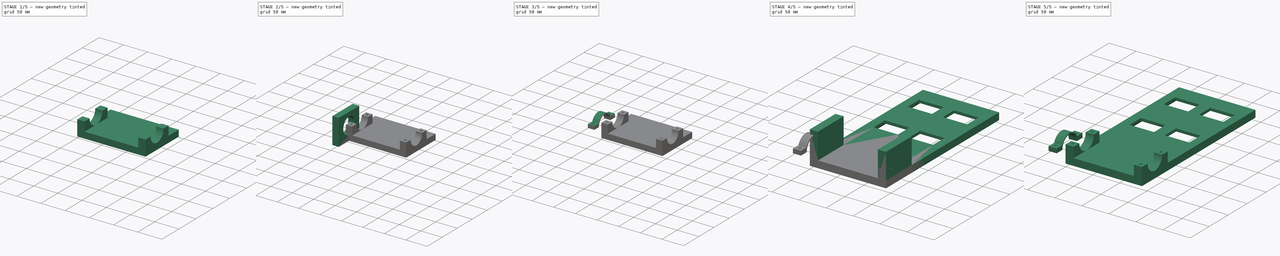
[diagram: build sequence overview — one tinted view per stage of 5, left to right]
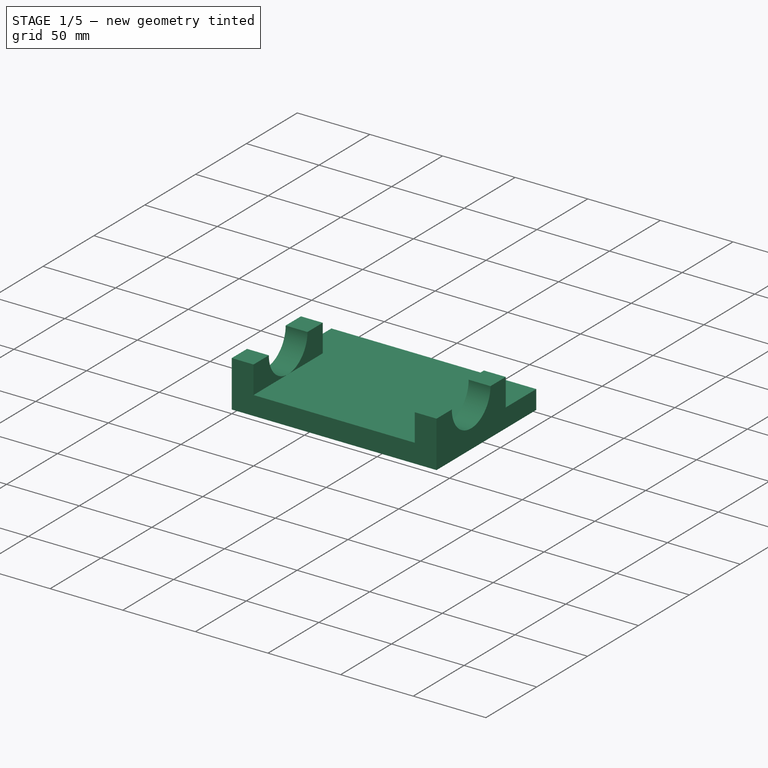
[diagram: stage 1 of 5 — iso view after this stage's code; geometry added in this stage tinted green]
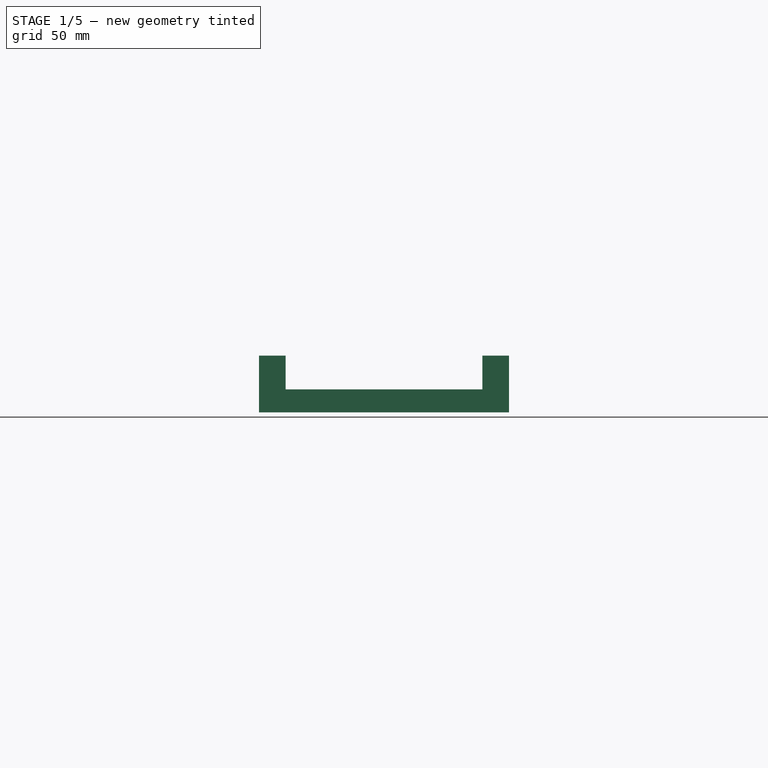
[diagram: stage 1 of 5 — front view after this stage's code; geometry added in this stage tinted green]
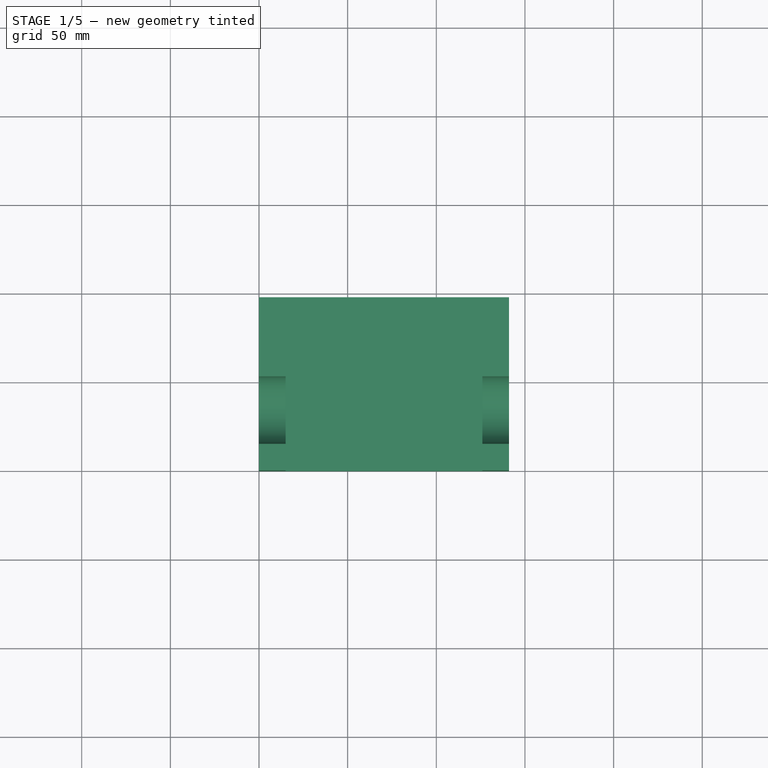
[diagram: stage 1 of 5 — top view after this stage's code; geometry added in this stage tinted green]
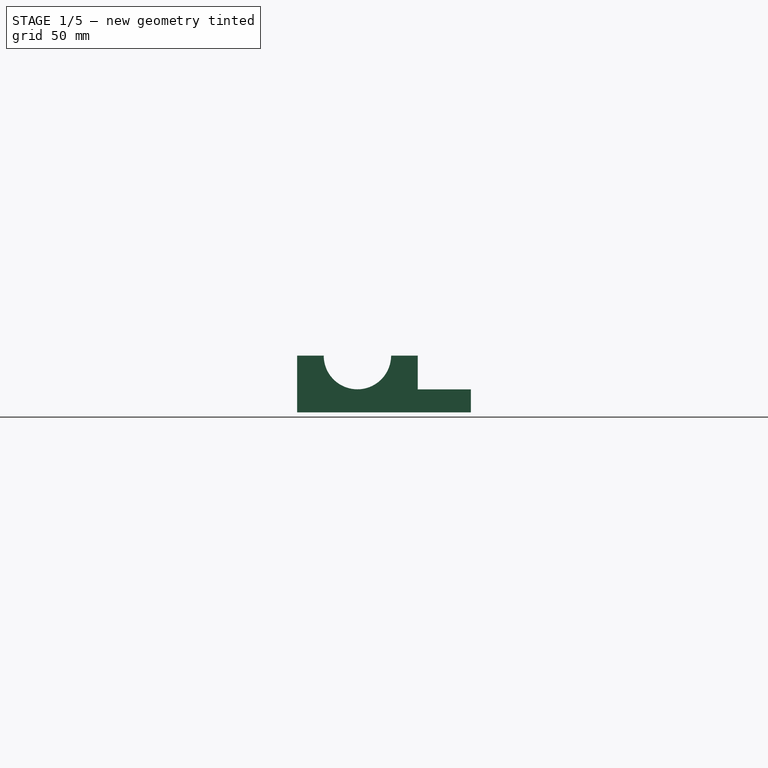
[diagram: stage 1 of 5 — right view after this stage's code; geometry added in this stage tinted green]
FCSTD DOCUMENT  (FreeCAD 0.21R33771 (Git))
Label: audio_interface_stand_versionB
License: All rights reserved
LicenseURL: http://en.wikipedia.org/wiki/All_rights_reserved
objects: Sketcher::SketchObject×20, PartDesign::Pocket×13, PartDesign::Pad×5, PartDesign::Body×3, Spreadsheet::Sheet×1, PartDesign::SubtractiveLoft×1, App::Part×1
note: 61 computed .brp shape members not serialized (recipe doc carries the construction recipe); baked Part::Feature solids carry a one-line shape summary decoded from their .brp

FEATURE [PartDesign::Body] Body001  label="hole_fixer"
  Group = -> [Sketch009,Pad003,Sketch010,Pocket006,Sketch011,Pocket007,Sketch012,Pocket008,Sketch017,Pocket015]
  Origin = -> Origin002
  Placement = pos=(134,34,2) rot=(0,0,1;0rad)
  Tip = -> Pocket015
FEATURE [Sketcher::SketchObject] Sketch018  label="base001"
  FullyConstrained = true
  MapMode = 5
  Support = -> [XY_Plane001]
  expr: Constraints[8] = Spreadsheet.spacer_y + Spreadsheet.fixY
  expr: Constraints[9] = Spreadsheet.squareX
  sketch-geometry (4):
    g0: LineSegment StartX=0 StartY=98 StartZ=0 EndX=141 EndY=98 EndZ=0
    g1: LineSegment StartX=141 StartY=98 StartZ=0 EndX=141 EndY=0 EndZ=0
    g2: LineSegment StartX=141 StartY=0 StartZ=0 EndX=0 EndY=0 EndZ=0
    g3: LineSegment StartX=0 StartY=0 StartZ=0 EndX=0 EndY=98 EndZ=0
  constraints (11):
    c: Coincident(g0,g1)
    c: Coincident(g1,g2)
    c: Coincident(g2,g3)
    c: Coincident(g3,g0)
    c: Horizontal(g0)
    c: Horizontal(g2)
    c: Vertical(g1)
    c: Vertical(g3)
    c: Distance(g3) = 98
    c: Distance(g2) = 141
    c: Coincident(g2,g-1)
FEATURE [PartDesign::Pad] Pad004
  Direction = (0,0,1)
  Length = 13
  Length2 = 10
  Profile = -> Sketch018
  ReferenceAxis = -> Sketch018 [N_Axis]
  Type = 0
  expr: Length = Spreadsheet.square_z
FEATURE [Sketcher::SketchObject] Sketch019  label="fixers003"
  ExternalGeometry = -> [Pad004]
  FullyConstrained = true
  MapMode = 5
  Support = -> [XY_Plane001]
  expr: Constraints[16] = Spreadsheet.fixX
  expr: Constraints[17] = Spreadsheet.fixY
  expr: Constraints[20] = Spreadsheet.fixX_pos
  sketch-geometry (8):
    g0: LineSegment StartX=126 StartY=68 StartZ=0 EndX=141 EndY=68 EndZ=0
    g1: LineSegment StartX=141 StartY=68 StartZ=0 EndX=141 EndY=0 EndZ=0
    g2: LineSegment StartX=141 StartY=0 StartZ=0 EndX=126 EndY=0 EndZ=0
    g3: LineSegment StartX=126 StartY=0 StartZ=0 EndX=126 EndY=68 EndZ=0
    g4: LineSegment StartX=15 StartY=68 StartZ=0 EndX=0 EndY=68 EndZ=0
    g5: LineSegment StartX=0 StartY=68 StartZ=0 EndX=0 EndY=0 EndZ=0
    g6: LineSegment StartX=0 StartY=0 StartZ=0 EndX=15 EndY=0 EndZ=0
    g7: LineSegment StartX=15 StartY=0 StartZ=0 EndX=15 EndY=68 EndZ=0
  constraints (23):
    c: Coincident(g0,g1)
    c: Coincident(g1,g2)
    c: Coincident(g2,g3)
    c: Coincident(g3,g0)
    c: Horizontal(g0)
    c: Horizontal(g2)
    c: Vertical(g1)
    c: Vertical(g3)
    c: Coincident(g4,g5)
    c: Coincident(g5,g6)
    c: Coincident(g6,g7)
    c: Coincident(g7,g4)
    c: Horizontal(g4)
    c: Horizontal(g6)
    c: Vertical(g5)
    c: Vertical(g7)
    c: Distance(g4) = 15
    c: Distance(g7) = 68
    c: Equal(g4,g0)
    c: Equal(g3,g5)
    c: DistanceX(g-1,g0) = 141
    c: Coincident(g5,g-3)
    c: PointOnObject(g1,g-1)
FEATURE [PartDesign::Pad] Pad005  label="fixers002"
  BaseFeature = -> Pad004
  Direction = (0,0,1)
  Length = 61
  Length2 = 10
  Profile = -> Sketch019
  ReferenceAxis = -> Sketch019 [N_Axis]
  Type = 0
  expr: Length = Spreadsheet.fix_pad
FEATURE [Sketcher::SketchObject] Sketch021  label="hole_fix001"
  FullyConstrained = true
  MapMode = 5
  Placement = pos=(0,0,0) rot=(0.57735,0.57735,0.57735;2.0944rad)
  Support = -> [YZ_Plane003]
  expr: Constraints[0] = Spreadsheet.hole_fix
  expr: Constraints[1] = Spreadsheet.hole_height
  expr: Constraints[2] = Spreadsheet.fixY / 2
  sketch-geometry (1):
    g0: Circle CenterX=34 CenterY=32 CenterZ=0 NormalX=0 NormalY=0 NormalZ=1 AngleXU=0 Radius=19
  constraints (3):
    c: Diameter(g0) = 38
    c: DistanceY(g-1,g0) = 32
    c: DistanceX(g-1,g0) = 34
FEATURE [PartDesign::Pocket] Pocket017  label="holes_fix001"
  BaseFeature = -> Pad005
  Direction = (-1,2e-16,-3e-16)
  Length = 5
  Length2 = 5
  Profile = -> Sketch021
  ReferenceAxis = -> Sketch021 [N_Axis]
  Reversed = true
  Type = 1
FEATURE [Sketcher::SketchObject] Sketch022  label="cut_fix003"
  FullyConstrained = true
  MapMode = 5
  Placement = pos=(0,0,0) rot=(0.57735,0.57735,0.57735;2.0944rad)
  Support = -> [YZ_Plane003]
  expr: Constraints[10] = Spreadsheet.hole_height
  expr: Constraints[8] = 65 mm
  sketch-geometry (4):
    g0: LineSegment StartX=0 StartY=97 StartZ=0 EndX=70 EndY=97 EndZ=0
    g1: LineSegment StartX=70 StartY=97 StartZ=0 EndX=70 EndY=32 EndZ=0
    g2: LineSegment StartX=70 StartY=32 StartZ=0 EndX=0 EndY=32 EndZ=0
    g3: LineSegment StartX=0 StartY=32 StartZ=0 EndX=0 EndY=97 EndZ=0
  constraints (12):
    c: Coincident(g0,g1)
    c: Coincident(g1,g2)
    c: Coincident(g2,g3)
    c: Coincident(g3,g0)
    c: Horizontal(g0)
    c: Horizontal(g2)
    c: Vertical(g1)
    c: Vertical(g3)
    c: Distance(g1) = 65
    c: Distance(g0) = 70
    c: DistanceY(g-1,g2) = 32
    c: PointOnObject(g2,g-2)
FEATURE [PartDesign::Pocket] Pocket018  label="cut_fix002"
  BaseFeature = -> Pocket017
  Direction = (-1,2e-16,-3e-16)
  Length = 5
  Length2 = 5
  Profile = -> Sketch022
  ReferenceAxis = -> Sketch022 [N_Axis]
  Reversed = true
  Type = 1
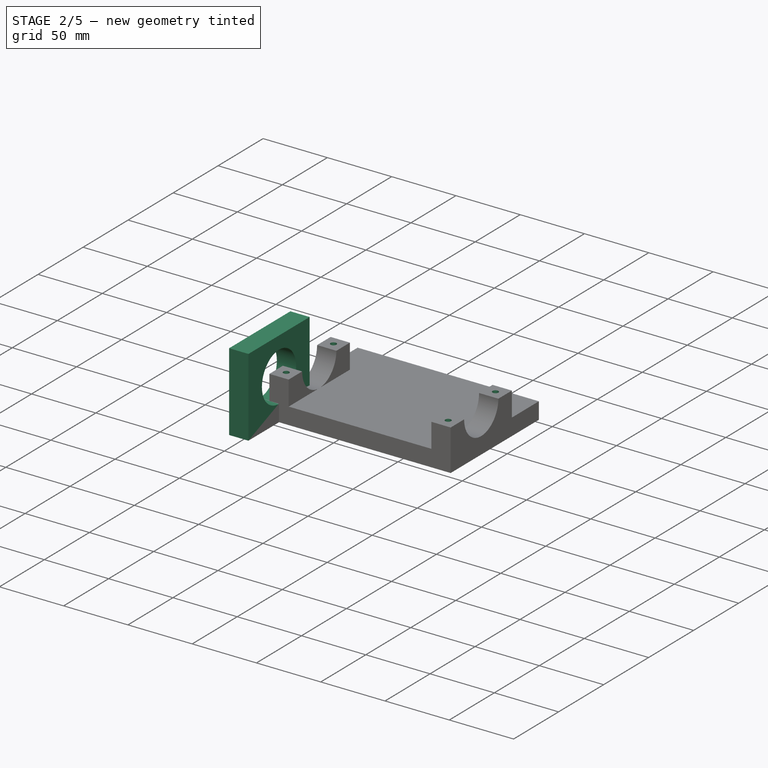
[diagram: stage 2 of 5 — iso view after this stage's code; geometry added in this stage tinted green]
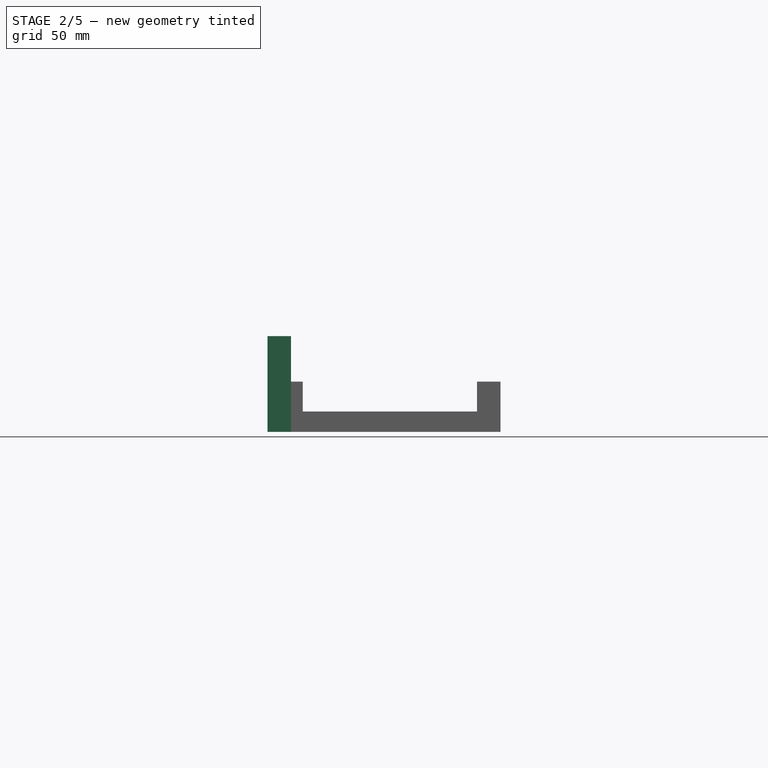
[diagram: stage 2 of 5 — front view after this stage's code; geometry added in this stage tinted green]
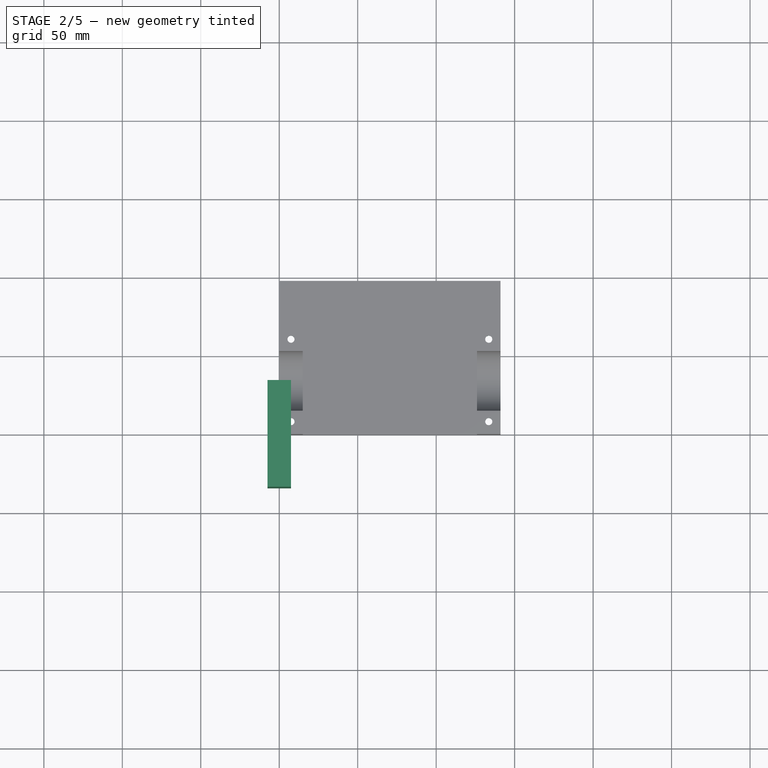
[diagram: stage 2 of 5 — top view after this stage's code; geometry added in this stage tinted green]
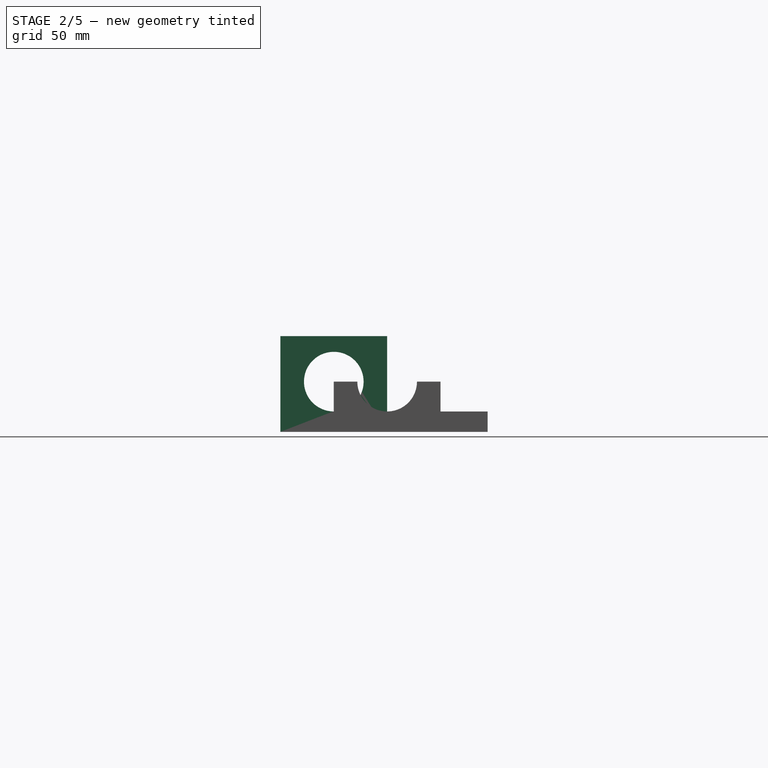
[diagram: stage 2 of 5 — right view after this stage's code; geometry added in this stage tinted green]
FEATURE [Sketcher::SketchObject] Sketch003  label="square_holes"
  FullyConstrained = true
  MapMode = 5
  Support = -> [XY_Plane001]
  expr: Constraints[46] = Spreadsheet.case_spacer + Spreadsheet.spacer_y + Spreadsheet.fixY + 40
  sketch-geometry (16):
    g0: LineSegment StartX=16 StartY=266 StartZ=0 EndX=61 EndY=266 EndZ=0
    g1: LineSegment StartX=61 StartY=266 StartZ=0 EndX=61 EndY=236 EndZ=0
    g2: LineSegment StartX=61 StartY=236 StartZ=0 EndX=16 EndY=236 EndZ=0
    g3: LineSegment StartX=16 StartY=236 StartZ=0 EndX=16 EndY=266 EndZ=0
    g4: LineSegment StartX=81 StartY=266 StartZ=0 EndX=126 EndY=266 EndZ=0
    g5: LineSegment StartX=126 StartY=266 StartZ=0 EndX=126 EndY=236 EndZ=0
    g6: LineSegment StartX=126 StartY=236 StartZ=0 EndX=81 EndY=236 EndZ=0
    g7: LineSegment StartX=81 StartY=236 StartZ=0 EndX=81 EndY=266 EndZ=0
    g8: LineSegment StartX=126 StartY=176 StartZ=0 EndX=81 EndY=176 EndZ=0
    g9: LineSegment StartX=81 StartY=176 StartZ=0 EndX=81 EndY=146 EndZ=0
    g10: LineSegment StartX=81 StartY=146 StartZ=0 EndX=126 EndY=146 EndZ=0
    g11: LineSegment StartX=126 StartY=146 StartZ=0 EndX=126 EndY=176 EndZ=0
    g12: LineSegment StartX=16 StartY=176 StartZ=0 EndX=61 EndY=176 EndZ=0
    g13: LineSegment StartX=61 StartY=176 StartZ=0 EndX=61 EndY=146 EndZ=0
    g14: LineSegment StartX=61 StartY=146 StartZ=0 EndX=16 EndY=146 EndZ=0
    g15: LineSegment StartX=16 StartY=146 StartZ=0 EndX=16 EndY=176 EndZ=0
  constraints (48):
    c: Coincident(g0,g1)
    c: Coincident(g1,g2)
    c: Coincident(g2,g3)
    c: Coincident(g3,g0)
    c: Horizontal(g0)
    c: Horizontal(g2)
    c: Vertical(g1)
    c: Vertical(g3)
    c: Coincident(g4,g5)
    c: Coincident(g5,g6)
    c: Coincident(g6,g7)
    c: Coincident(g7,g4)
    c: Horizontal(g4)
    c: Horizontal(g6)
    c: Vertical(g5)
    c: Vertical(g7)
    c: Coincident(g8,g9)
    c: Coincident(g9,g10)
    c: Coincident(g10,g11)
    c: Coincident(g11,g8)
    c: Horizontal(g8)
    c: Horizontal(g10)
    c: Vertical(g9)
    c: Vertical(g11)
    c: Coincident(g12,g13)
    c: Coincident(g13,g14)
    c: Coincident(g14,g15)
    c: Coincident(g15,g12)
    c: Horizontal(g12)
    c: Horizontal(g14)
    c: Vertical(g13)
    c: Vertical(g15)
    c: DistanceY(g15,g15) = 30
    c: DistanceY(g3,g3) = 30
    c: DistanceY(g7,g7) = 30
    c: DistanceY(g9,g9) = 30
    c: DistanceX(g12,g12) = 45
    c: DistanceX(g8,g8) = 45
    c: DistanceX(g12,g8) = 20
    c: DistanceX(g1,g6) = 20
    c: DistanceY(g12,g1) = 60
    c: DistanceX(g4,g4) = 45
    c: DistanceY(g8,g5) = 60
    c: DistanceX(g14,g1) = 45
    c: DistanceX(g0,g0) = 45
    c: DistanceY(g9,g12) = 30
    c: DistanceY(g-1,g14) = 146
    c: DistanceX(g-1,g14) = 16
FEATURE [Sketcher::SketchObject] Sketch004  label="hole_fix"
  FullyConstrained = true
  MapMode = 5
  Placement = pos=(0,0,0) rot=(0.57735,0.57735,0.57735;2.0944rad)
  Support = -> [YZ_Plane001]
  expr: Constraints[0] = Spreadsheet.hole_fix
  expr: Constraints[1] = Spreadsheet.hole_height
  expr: Constraints[2] = Spreadsheet.fixY / 2
  sketch-geometry (1):
    g0: Circle CenterX=34 CenterY=32 CenterZ=0 NormalX=0 NormalY=0 NormalZ=1 AngleXU=0 Radius=19
  constraints (3):
    c: Diameter(g0) = 38
    c: DistanceY(g-1,g0) = 32
    c: DistanceX(g-1,g0) = 34
FEATURE [Sketcher::SketchObject] Sketch005  label="cut_fix"
  FullyConstrained = true
  MapMode = 5
  Placement = pos=(0,0,0) rot=(0.57735,0.57735,0.57735;2.0944rad)
  Support = -> [YZ_Plane001]
  expr: Constraints[10] = Spreadsheet.hole_height
  expr: Constraints[8] = 65 mm
  sketch-geometry (4):
    g0: LineSegment StartX=0 StartY=97 StartZ=0 EndX=70 EndY=97 EndZ=0
    g1: LineSegment StartX=70 StartY=97 StartZ=0 EndX=70 EndY=32 EndZ=0
    g2: LineSegment StartX=70 StartY=32 StartZ=0 EndX=0 EndY=32 EndZ=0
    g3: LineSegment StartX=0 StartY=32 StartZ=0 EndX=0 EndY=97 EndZ=0
  constraints (12):
    c: Coincident(g0,g1)
    c: Coincident(g1,g2)
    c: Coincident(g2,g3)
    c: Coincident(g3,g0)
    c: Horizontal(g0)
    c: Horizontal(g2)
    c: Vertical(g1)
    c: Vertical(g3)
    c: Distance(g1) = 65
    c: Distance(g0) = 70
    c: DistanceY(g-1,g2) = 32
    c: PointOnObject(g2,g-2)
FEATURE [Sketcher::SketchObject] Sketch006  label="holes_screw"
  FullyConstrained = true
  MapMode = 5
  Support = -> [XY_Plane001]
  expr: Constraints[0] = Spreadsheet.hole_metric
  expr: Constraints[10] = <<Spreadsheet>>.hole_spacer + 3
  expr: Constraints[11] = <<Spreadsheet>>.hole_spacer + 3
  expr: Constraints[4] = Spreadsheet.hole_pox_x
  expr: Constraints[5] = Spreadsheet.hole_pox_x
  expr: Constraints[6] = Spreadsheet.hole_pox_y
  expr: Constraints[7] = Spreadsheet.hole_pox_y
  expr: Constraints[8] = <<Spreadsheet>>.fixX / 2
  expr: Constraints[9] = <<Spreadsheet>>.fixX / 2
  sketch-geometry (4):
    g0: Circle CenterX=7.5 CenterY=60.5 CenterZ=0 NormalX=0 NormalY=0 NormalZ=1 AngleXU=0 Radius=2.25
    g1: Circle CenterX=133.5 CenterY=60.5 CenterZ=0 NormalX=0 NormalY=0 NormalZ=1 AngleXU=0 Radius=2.25
    g2: Circle CenterX=133.5 CenterY=8 CenterZ=0 NormalX=0 NormalY=0 NormalZ=1 AngleXU=0 Radius=2.25
    g3: Circle CenterX=7.5 CenterY=8 CenterZ=0 NormalX=0 NormalY=0 NormalZ=1 AngleXU=0 Radius=2.25
  constraints (12):
    c: Diameter(g0) = 4.5
    c: Equal(g0,g3)
    c: Equal(g0,g1)
    c: Equal(g0,g2)
    c: DistanceX(g-1,g2) = 133.5
    c: DistanceX(g-1,g1) = 133.5
    c: DistanceY(g2,g1) = 52.5
    c: DistanceY(g3,g0) = 52.5
    c: DistanceX(g-1,g3) = 7.5
    c: DistanceX(g-1,g0) = 7.5
    c: DistanceY(g-1,g3) = 8
    c: DistanceY(g-1,g2) = 8
FEATURE [Sketcher::SketchObject] Sketch009
  FullyConstrained = true
  MapMode = 5
  Support = -> [XY_Plane002]
  expr: Constraints[8] = Spreadsheet.fixY
  expr: Constraints[9] = Spreadsheet.fixX
  sketch-geometry (4):
    g0: LineSegment StartX=-7.5 StartY=-34 StartZ=0 EndX=7.5 EndY=-34 EndZ=0
    g1: LineSegment StartX=7.5 StartY=-34 StartZ=0 EndX=7.5 EndY=34 EndZ=0
    g2: LineSegment StartX=7.5 StartY=34 StartZ=0 EndX=-7.5 EndY=34 EndZ=0
    g3: LineSegment StartX=-7.5 StartY=34 StartZ=0 EndX=-7.5 EndY=-34 EndZ=0
  constraints (11):
    c: Coincident(g0,g1)
    c: Coincident(g1,g2)
    c: Coincident(g2,g3)
    c: Coincident(g3,g0)
    c: Horizontal(g0)
    c: Horizontal(g2)
    c: Vertical(g1)
    c: Vertical(g3)
    c: DistanceY(g3,g3) = 68
    c: DistanceX(g2,g2) = 15
    c: Symmetric(g0,g2,g-1)
FEATURE [PartDesign::Pad] Pad003
  Direction = (0,0,1)
  Length = 61
  Length2 = 10
  Profile = -> Sketch009
  ReferenceAxis = -> Sketch009 [N_Axis]
  Type = 0
  expr: Length = Spreadsheet.fix_pad
FEATURE [Sketcher::SketchObject] Sketch010
  FullyConstrained = true
  MapMode = 5
  Placement = pos=(0,0,0) rot=(0.57735,0.57735,0.57735;2.0944rad)
  Support = -> [YZ_Plane002]
  expr: Constraints[1] = Spreadsheet.hole_fix
  expr: Constraints[2] = Spreadsheet.hole_height
  sketch-geometry (1):
    g0: Circle CenterX=0 CenterY=32 CenterZ=0 NormalX=0 NormalY=0 NormalZ=1 AngleXU=0 Radius=19
  constraints (3):
    c: PointOnObject(g0,g-2)
    c: Diameter(g0) = 38
    c: DistanceY(g-1,g0) = 32
FEATURE [PartDesign::Pocket] Pocket006
  BaseFeature = -> Pad003
  Direction = (-1,2e-16,-3e-16)
  Length = 5
  Length2 = 5
  Midplane = true
  Profile = -> Sketch010
  ReferenceAxis = -> Sketch010 [N_Axis]
  Type = 1
FEATURE [Sketcher::SketchObject] Sketch023  label="holes_screw001"
  FullyConstrained = true
  MapMode = 5
  Support = -> [XY_Plane001]
  expr: Constraints[0] = Spreadsheet.hole_metric
  expr: Constraints[10] = <<Spreadsheet>>.hole_spacer + 3
  expr: Constraints[11] = <<Spreadsheet>>.hole_spacer + 3
  expr: Constraints[4] = Spreadsheet.hole_pox_x
  expr: Constraints[5] = Spreadsheet.hole_pox_x
  expr: Constraints[6] = Spreadsheet.hole_pox_y
  expr: Constraints[7] = Spreadsheet.hole_pox_y
  expr: Constraints[8] = <<Spreadsheet>>.fixX / 2
  expr: Constraints[9] = <<Spreadsheet>>.fixX / 2
  sketch-geometry (4):
    g0: Circle CenterX=7.5 CenterY=60.5 CenterZ=0 NormalX=0 NormalY=0 NormalZ=1 AngleXU=0 Radius=2.25
    g1: Circle CenterX=133.5 CenterY=60.5 CenterZ=0 NormalX=0 NormalY=0 NormalZ=1 AngleXU=0 Radius=2.25
    g2: Circle CenterX=133.5 CenterY=8 CenterZ=0 NormalX=0 NormalY=0 NormalZ=1 AngleXU=0 Radius=2.25
    g3: Circle CenterX=7.5 CenterY=8 CenterZ=0 NormalX=0 NormalY=0 NormalZ=1 AngleXU=0 Radius=2.25
  constraints (12):
    c: Diameter(g0) = 4.5
    c: Equal(g0,g3)
    c: Equal(g0,g1)
    c: Equal(g0,g2)
    c: DistanceX(g-1,g2) = 133.5
    c: DistanceX(g-1,g1) = 133.5
    c: DistanceY(g2,g1) = 52.5
    c: DistanceY(g3,g0) = 52.5
    c: DistanceX(g-1,g3) = 7.5
    c: DistanceX(g-1,g0) = 7.5
    c: DistanceY(g-1,g3) = 8
    c: DistanceY(g-1,g2) = 8
FEATURE [PartDesign::Pocket] Pocket019  label="holes_screw_poc001"
  BaseFeature = -> Pocket018
  Direction = (0,0,-1)
  Length = 5
  Length2 = 5
  Profile = -> Sketch023
  ReferenceAxis = -> Sketch023 [N_Axis]
  Reversed = true
  Type = 1
FEATURE [Sketcher::SketchObject] Sketch024  label="screw_hole_case001"
  ExternalGeometry = -> [Pocket019]
  FullyConstrained = true
  MapMode = 5
  Support = -> [XY_Plane001]
  expr: Constraints[0] = Spreadsheet.boxe_screw
  sketch-geometry (4):
    g0: Circle CenterX=133.5 CenterY=8 CenterZ=0 NormalX=0 NormalY=0 NormalZ=1 AngleXU=0 Radius=4
    g1: Circle CenterX=7.5 CenterY=60.5 CenterZ=0 NormalX=0 NormalY=0 NormalZ=1 AngleXU=0 Radius=4
    g2: Circle CenterX=7.5 CenterY=8 CenterZ=0 NormalX=0 NormalY=0 NormalZ=1 AngleXU=0 Radius=4
    g3: Circle CenterX=133.5 CenterY=60.5 CenterZ=0 NormalX=0 NormalY=0 NormalZ=1 AngleXU=0 Radius=4
  constraints (8):
    c: Diameter(g0) = 8
    c: Equal(g0,g1)
    c: Equal(g0,g2)
    c: Equal(g0,g3)
    c: Coincident(g1,g-3)
    c: Coincident(g2,g-4)
    c: Coincident(g3,g-5)
    c: Coincident(g0,g-6)
FEATURE [PartDesign::Pocket] Pocket020
  BaseFeature = -> Pocket019
  Direction = (0,0,-1)
  Length = 29
  Length2 = 5
  Profile = -> Sketch024
  ReferenceAxis = -> Sketch024 [N_Axis]
  Reversed = true
  Type = 0
  expr: Length = Spreadsheet.square_z + Spreadsheet.hole_fix / 2 - 3
FEATURE [PartDesign::Body] Body002
  Group = -> [Sketch018,Pad004,Sketch019,Pad005,Sketch021,Sketch022,Sketch023,Sketch024,Pocket017,Pocket018,Pocket019,Pocket020]
  Origin = -> Origin003
  Tip = -> Pocket020
FEATURE [App::Part] Part  label="TASCAM audio interface stand"
  Group = -> [Body,Body001,Body002]
  Origin = -> Origin
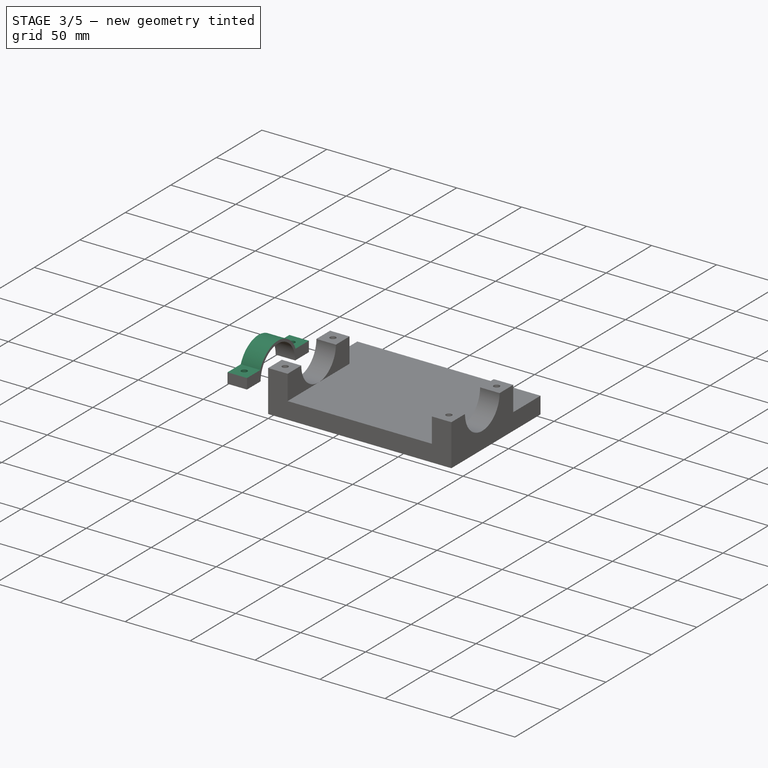
[diagram: stage 3 of 5 — iso view after this stage's code; geometry added in this stage tinted green]
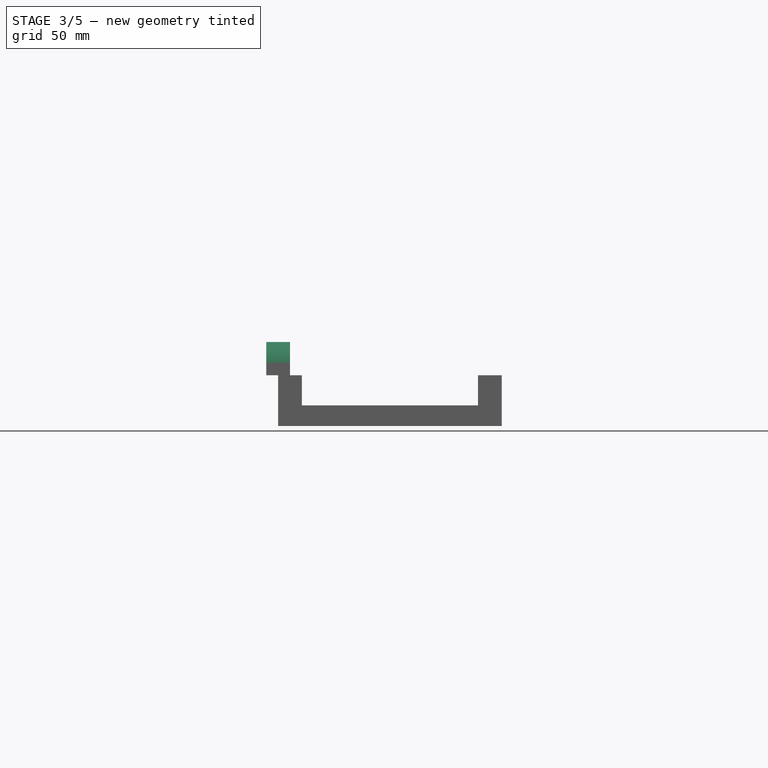
[diagram: stage 3 of 5 — front view after this stage's code; geometry added in this stage tinted green]
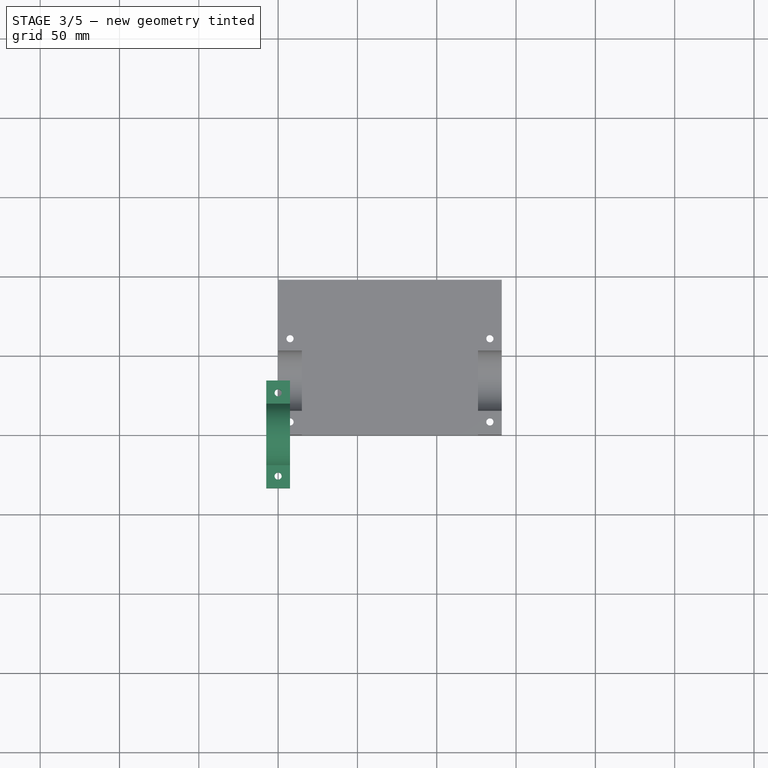
[diagram: stage 3 of 5 — top view after this stage's code; geometry added in this stage tinted green]
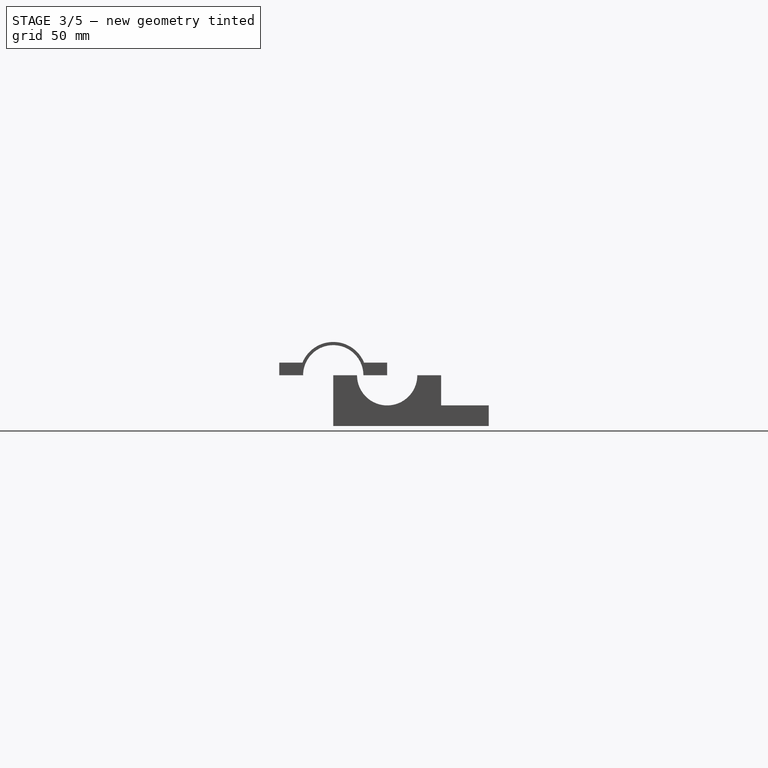
[diagram: stage 3 of 5 — right view after this stage's code; geometry added in this stage tinted green]
FEATURE [Sketcher::SketchObject] Sketch011
  FullyConstrained = true
  MapMode = 5
  Placement = pos=(0,0,0) rot=(0.57735,0.57735,0.57735;2.0944rad)
  Support = -> [YZ_Plane002]
  expr: Constraints[8] = Spreadsheet.hole_height
  sketch-geometry (4):
    g0: LineSegment StartX=-40 StartY=32 StartZ=0 EndX=40 EndY=32 EndZ=0
    g1: LineSegment StartX=40 StartY=32 StartZ=0 EndX=40 EndY=-8 EndZ=0
    g2: LineSegment StartX=40 StartY=-8 StartZ=0 EndX=-40 EndY=-8 EndZ=0
    g3: LineSegment StartX=-40 StartY=-8 StartZ=0 EndX=-40 EndY=32 EndZ=0
  constraints (12):
    c: Coincident(g0,g1)
    c: Coincident(g1,g2)
    c: Coincident(g2,g3)
    c: Coincident(g3,g0)
    c: Horizontal(g0)
    c: Horizontal(g2)
    c: Vertical(g1)
    c: Vertical(g3)
    c: DistanceY(g-1,g0) = 32
    c: DistanceX(g0,g0) = 80
    c: DistanceX(g0,g-1) = 40
    c: DistanceY(g2,g0) = 40
FEATURE [PartDesign::Pocket] Pocket007
  BaseFeature = -> Pocket006
  Direction = (-1,2e-16,-3e-16)
  Length = 5
  Length2 = 5
  Midplane = true
  Profile = -> Sketch011
  ReferenceAxis = -> Sketch011 [N_Axis]
  Type = 1
FEATURE [Sketcher::SketchObject] Sketch012
  FullyConstrained = true
  MapMode = 5
  Support = -> [XY_Plane002]
  expr: Constraints[0] = Spreadsheet.hole_pox_y / 2
  expr: Constraints[1] = Spreadsheet.hole_metric
  expr: Constraints[5] = Spreadsheet.hole_pox_y / 2
  sketch-geometry (2):
    g0: Circle CenterX=0 CenterY=26.25 CenterZ=0 NormalX=0 NormalY=0 NormalZ=1 AngleXU=0 Radius=2.25
    g1: Circle CenterX=0 CenterY=-26.25 CenterZ=0 NormalX=0 NormalY=0 NormalZ=1 AngleXU=0 Radius=2.25
  constraints (6):
    c: DistanceY(g0) = 26.25
    c: Diameter(g0) = 4.5
    c: PointOnObject(g0,g-2)
    c: Equal(g0,g1)
    c: PointOnObject(g1,g-2)
    c: DistanceY(g1,g-1) = 26.25
FEATURE [PartDesign::Pocket] Pocket008
  BaseFeature = -> Pocket007
  Direction = (0,0,-1)
  Length = 55
  Length2 = 5
  Profile = -> Sketch012
  ReferenceAxis = -> Sketch012 [N_Axis]
  Reversed = true
  Type = 0
FEATURE [PartDesign::Body] Body
  Group = -> [Sketch,Pad,Sketch001,Pad001,Sketch003,Sketch004,Sketch005,Sketch006,Sketch007,Sketch015,Sketch016,SubtractiveLoft,Pocket,Pocket011,Pocket012,Pocket013,Pocket014]
  Origin = -> Origin001
  Tip = -> Pocket014
FEATURE [Sketcher::SketchObject] Sketch017
  ExternalGeometry = -> [Pocket008]
  FullyConstrained = true
  MapMode = 5
  Placement = pos=(0,0,0) rot=(0.57735,0.57735,0.57735;2.0944rad)
  Support = -> [YZ_Plane002]
  expr: Constraints[17] = Spreadsheet.hole_fix / 2 + 2
  sketch-geometry (6):
    g0: ArcOfCircle CenterX=0 CenterY=32 CenterZ=0 NormalX=0 NormalY=0 NormalZ=1 AngleXU=0 Radius=21 StartAngle=0.390826 EndAngle=2.75077
    g1: LineSegment StartX=19.4165 StartY=40 StartZ=0 EndX=36 EndY=40 EndZ=0
    g2: LineSegment StartX=36 StartY=40 StartZ=0 EndX=36 EndY=63 EndZ=0
    g3: LineSegment StartX=36 StartY=63 StartZ=0 EndX=-36 EndY=63 EndZ=0
    g4: LineSegment StartX=-36 StartY=63 StartZ=0 EndX=-36 EndY=40 EndZ=0
    g5: LineSegment StartX=-36 StartY=40 StartZ=0 EndX=-19.4165 EndY=40 EndZ=0
  constraints (18):
    c: Coincident(g0,g-3)
    c: DistanceY(g-3,g0) = 8
    c: DistanceY(g-3,g0) = 8
    c: Horizontal(g1)
    c: Coincident(g1,g2)
    c: Vertical(g2)
    c: Coincident(g2,g3)
    c: Horizontal(g3)
    c: Coincident(g3,g4)
    c: Vertical(g4)
    c: Coincident(g4,g5)
    c: Horizontal(g5)
    c: Coincident(g5,g0)
    c: Coincident(g1,g0)
    c: DistanceX(g3,g3) = 72
    c: DistanceY(g4,g4) = 23
    c: DistanceX(g3,g0) = 36
    c: Radius(g0) = 21
FEATURE [PartDesign::Pocket] Pocket015
  BaseFeature = -> Pocket008
  Direction = (-1,2e-16,-3e-16)
  Length = 5
  Length2 = 5
  Midplane = true
  Profile = -> Sketch017
  ReferenceAxis = -> Sketch017 [N_Axis]
  Type = 1
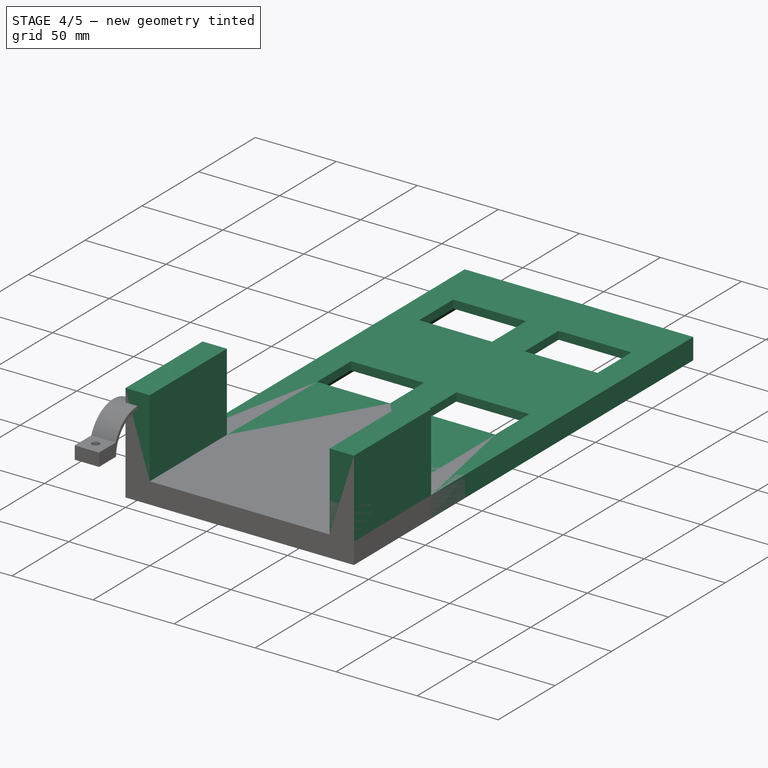
[diagram: stage 4 of 5 — iso view after this stage's code; geometry added in this stage tinted green]
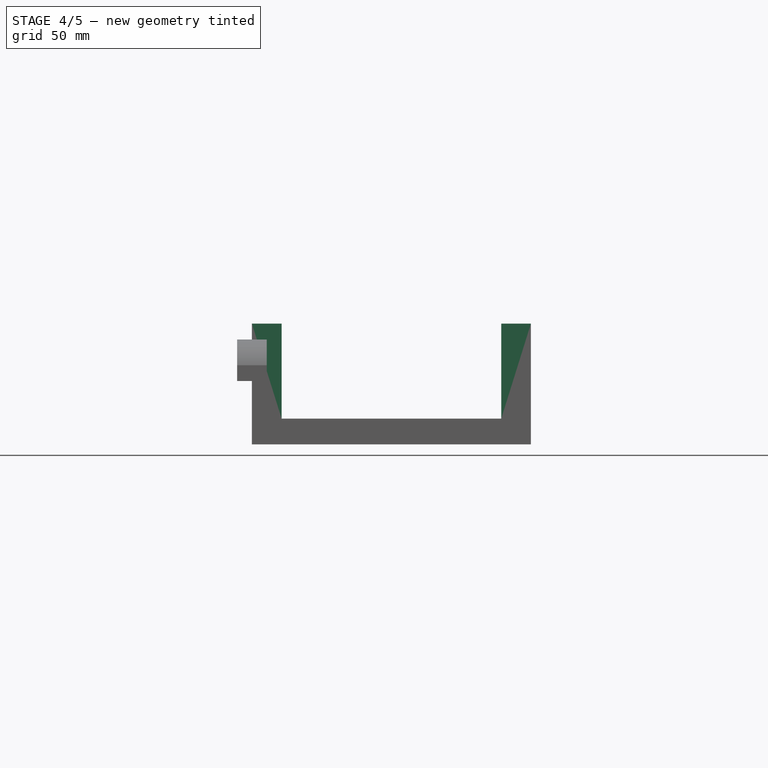
[diagram: stage 4 of 5 — front view after this stage's code; geometry added in this stage tinted green]
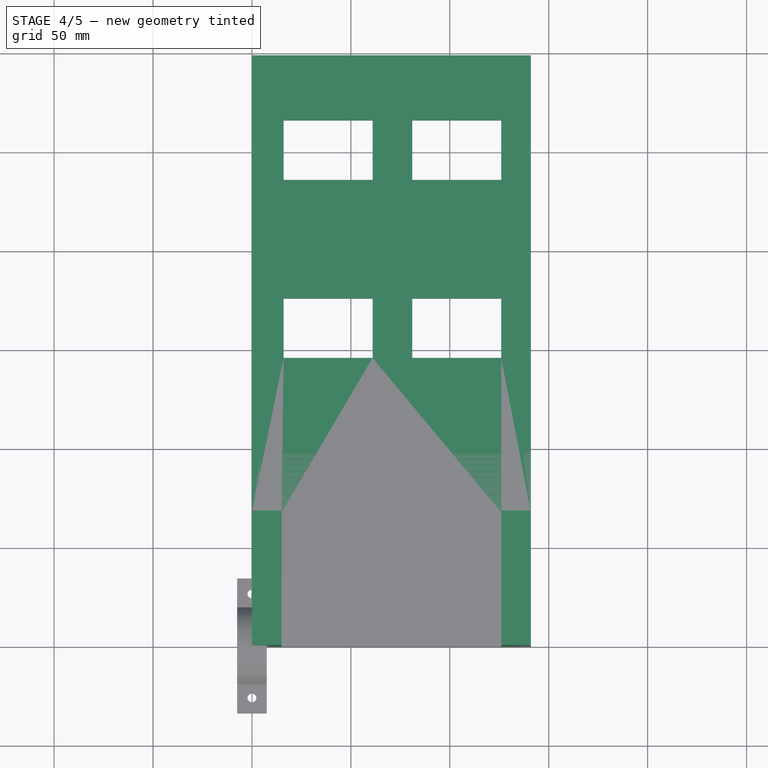
[diagram: stage 4 of 5 — top view after this stage's code; geometry added in this stage tinted green]
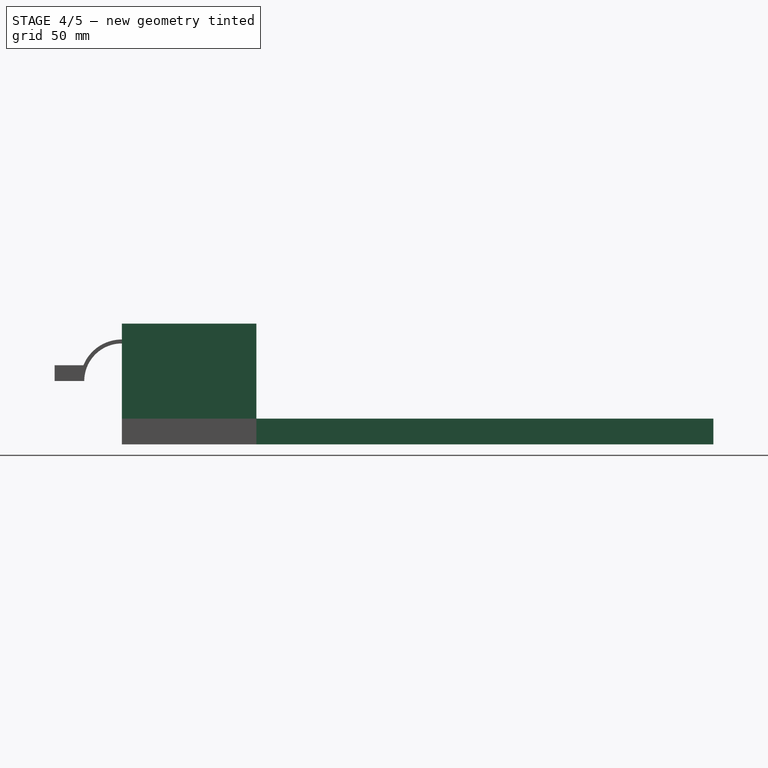
[diagram: stage 4 of 5 — right view after this stage's code; geometry added in this stage tinted green]
FEATURE [Sketcher::SketchObject] Sketch  label="base"
  FullyConstrained = true
  MapMode = 5
  Support = -> [XY_Plane001]
  expr: Constraints[8] = Spreadsheet.squareY
  expr: Constraints[9] = Spreadsheet.squareX
  sketch-geometry (4):
    g0: LineSegment StartX=0 StartY=299 StartZ=0 EndX=141 EndY=299 EndZ=0
    g1: LineSegment StartX=141 StartY=299 StartZ=0 EndX=141 EndY=0 EndZ=0
    g2: LineSegment StartX=141 StartY=0 StartZ=0 EndX=0 EndY=0 EndZ=0
    g3: LineSegment StartX=0 StartY=0 StartZ=0 EndX=0 EndY=299 EndZ=0
  constraints (11):
    c: Coincident(g0,g1)
    c: Coincident(g1,g2)
    c: Coincident(g2,g3)
    c: Coincident(g3,g0)
    c: Horizontal(g0)
    c: Horizontal(g2)
    c: Vertical(g1)
    c: Vertical(g3)
    c: Distance(g3) = 299
    c: Distance(g2) = 141
    c: Coincident(g2,g-1)
FEATURE [PartDesign::Pad] Pad
  Direction = (0,0,1)
  Length = 13
  Length2 = 10
  Profile = -> Sketch
  ReferenceAxis = -> Sketch [N_Axis]
  Type = 0
  expr: Length = Spreadsheet.square_z
FEATURE [Sketcher::SketchObject] Sketch001  label="fixers"
  ExternalGeometry = -> [Pad]
  FullyConstrained = true
  MapMode = 5
  Support = -> [XY_Plane001]
  expr: Constraints[16] = Spreadsheet.fixX
  expr: Constraints[17] = Spreadsheet.fixY
  expr: Constraints[20] = Spreadsheet.fixX_pos
  sketch-geometry (8):
    g0: LineSegment StartX=126 StartY=68 StartZ=0 EndX=141 EndY=68 EndZ=0
    g1: LineSegment StartX=141 StartY=68 StartZ=0 EndX=141 EndY=0 EndZ=0
    g2: LineSegment StartX=141 StartY=0 StartZ=0 EndX=126 EndY=0 EndZ=0
    g3: LineSegment StartX=126 StartY=0 StartZ=0 EndX=126 EndY=68 EndZ=0
    g4: LineSegment StartX=15 StartY=68 StartZ=0 EndX=0 EndY=68 EndZ=0
    g5: LineSegment StartX=0 StartY=68 StartZ=0 EndX=0 EndY=0 EndZ=0
    g6: LineSegment StartX=0 StartY=0 StartZ=0 EndX=15 EndY=0 EndZ=0
    g7: LineSegment StartX=15 StartY=0 StartZ=0 EndX=15 EndY=68 EndZ=0
  constraints (23):
    c: Coincident(g0,g1)
    c: Coincident(g1,g2)
    c: Coincident(g2,g3)
    c: Coincident(g3,g0)
    c: Horizontal(g0)
    c: Horizontal(g2)
    c: Vertical(g1)
    c: Vertical(g3)
    c: Coincident(g4,g5)
    c: Coincident(g5,g6)
    c: Coincident(g6,g7)
    c: Coincident(g7,g4)
    c: Horizontal(g4)
    c: Horizontal(g6)
    c: Vertical(g5)
    c: Vertical(g7)
    c: Distance(g4) = 15
    c: Distance(g7) = 68
    c: Equal(g4,g0)
    c: Equal(g3,g5)
    c: DistanceX(g-1,g0) = 141
    c: Coincident(g5,g-3)
    c: PointOnObject(g1,g-1)
FEATURE [Spreadsheet::Sheet] Spreadsheet
  cells = A2='squareX; B2(squareX)==B16 + 2 * B18; C2=0; A3='squareY; B3(squareY)==B17 + B29 + 2 * B18 + B5; C3=0; A4='fixX; B4(fixX)=15; C4='input; A5='fixY; B5(fixY)==B11 + 2 * B12 + 20; A6='metric; B6(metric)=4; C6='input; A7='hole_metric; B7(hole_metric)==B6 + B10; A8='boxe_screw; B8(boxe_screw)==B6 + 4; A9='boxe_bolt; B9(boxe_bolt)==B6 + 4; A10='screw_tolerance; B10(screw_tolerance)=0.5; C10='input; A11='hole_fix; B11(hole_fix)=38; C11='input; A12='hole_spacer; B12(hole_spacer)=5; C12='input; A13='fixX_pos; B13(fixX_pos)==B2; A14='fixY_pos; B14(fixY_pos)==B5 / 2; A15='fix_pad; B15(fix_pad)==B11 + 2 * B12 + B20; A16='case_hole_x; B16(case_hole_x)=125; C16='input; A17='case_hole_y; B17(case_hole_y)=185; C17='input; A18='case_spacer; B18(case_spacer)=8; C18='input; A19='case_hole_z; B19(case_hole_z)=8; C19='input; A20='square_z; B20(square_z)==B19 + 5; A21='delta_x_case; B21(delta_x_case)=10; A22='case_hole_x_pos; B22(case_hole_x_pos)==B16 / 2; A23='case_hole_x_2; B23(case_hole_x_2)==B16 - 2 * B21; A24='case_hole_y_2; B24(case_hole_y_2)=; A25='case_hole_x_2_pos; B25(case_hole_x_2_pos)==B23 / 2; A26='hole_height; B26(hole_height)==B11 / 2 + B20; A27='hole_pox_y; B27(hole_pox_y)==B11 + 2 * B12 + B7; A28='hole_pox_x; B28(hole_pox_x)==B2 - B4 / 2; A29='spacer_y; B29(spacer_y)=30
FEATURE [PartDesign::Pad] Pad001  label="fixers001"
  BaseFeature = -> Pad
  Direction = (0,0,1)
  Length = 61
  Length2 = 10
  Profile = -> Sketch001
  ReferenceAxis = -> Sketch001 [N_Axis]
  Type = 0
  expr: Length = Spreadsheet.fix_pad
FEATURE [Sketcher::SketchObject] Sketch015  label="case_hole_t"
  FullyConstrained = true
  MapMode = 5
  Support = -> [XY_Plane001]
  expr: Constraints[10] = Spreadsheet.case_hole_y
  expr: Constraints[11] = Spreadsheet.case_hole_x
  expr: Constraints[8] = Spreadsheet.case_spacer
  expr: Constraints[9] = Spreadsheet.case_spacer + Spreadsheet.spacer_y + Spreadsheet.fixY
  sketch-geometry (4):
    g0: LineSegment StartX=8 StartY=291 StartZ=0 EndX=133 EndY=291 EndZ=0
    g1: LineSegment StartX=133 StartY=291 StartZ=0 EndX=133 EndY=106 EndZ=0
    g2: LineSegment StartX=133 StartY=106 StartZ=0 EndX=8 EndY=106 EndZ=0
    g3: LineSegment StartX=8 StartY=106 StartZ=0 EndX=8 EndY=291 EndZ=0
  constraints (12):
    c: Coincident(g0,g1)
    c: Coincident(g1,g2)
    c: Coincident(g2,g3)
    c: Coincident(g3,g0)
    c: Horizontal(g0)
    c: Horizontal(g2)
    c: Vertical(g1)
    c: Vertical(g3)
    c: DistanceX(g-1,g2) = 8
    c: DistanceY(g-1,g2) = 106
    c: DistanceY(g3,g3) = 185
    c: DistanceX(g2,g2) = 125
FEATURE [Sketcher::SketchObject] Sketch016  label="case_hole_b"
  AttachmentOffset = pos=(0,0,8) rot=(0,0,1;0rad)
  FullyConstrained = true
  MapMode = 5
  Placement = pos=(0,0,8) rot=(0,0,1;0rad)
  Support = -> [XY_Plane001]
  expr: .AttachmentOffset.Base.z = Spreadsheet.case_hole_z
  expr: Constraints[10] = Spreadsheet.case_hole_y
  expr: Constraints[11] = Spreadsheet.case_hole_x - 10
  expr: Constraints[8] = Spreadsheet.case_spacer + 5
  expr: Constraints[9] = Spreadsheet.case_spacer + Spreadsheet.spacer_y + Spreadsheet.fixY
  sketch-geometry (4):
    g0: LineSegment StartX=13 StartY=291 StartZ=0 EndX=128 EndY=291 EndZ=0
    g1: LineSegment StartX=128 StartY=291 StartZ=0 EndX=128 EndY=106 EndZ=0
    g2: LineSegment StartX=128 StartY=106 StartZ=0 EndX=13 EndY=106 EndZ=0
    g3: LineSegment StartX=13 StartY=106 StartZ=0 EndX=13 EndY=291 EndZ=0
  constraints (12):
    c: Coincident(g0,g1)
    c: Coincident(g1,g2)
    c: Coincident(g2,g3)
    c: Coincident(g3,g0)
    c: Horizontal(g0)
    c: Horizontal(g2)
    c: Vertical(g1)
    c: Vertical(g3)
    c: DistanceX(g-1,g2) = 13
    c: DistanceY(g-1,g2) = 106
    c: DistanceY(g3,g3) = 185
    c: DistanceX(g2,g2) = 115
FEATURE [PartDesign::SubtractiveLoft] SubtractiveLoft
  BaseFeature = -> Pad001
  Closed = false
  Profile = -> Sketch015
  Ruled = false
  Sections = -> [Sketch016]
FEATURE [PartDesign::Pocket] Pocket  label="suare_holes"
  BaseFeature = -> SubtractiveLoft
  Direction = (0,0,-1)
  Length = 5
  Length2 = 5
  Midplane = true
  Profile = -> Sketch003
  ReferenceAxis = -> Sketch003 [N_Axis]
  Type = 1
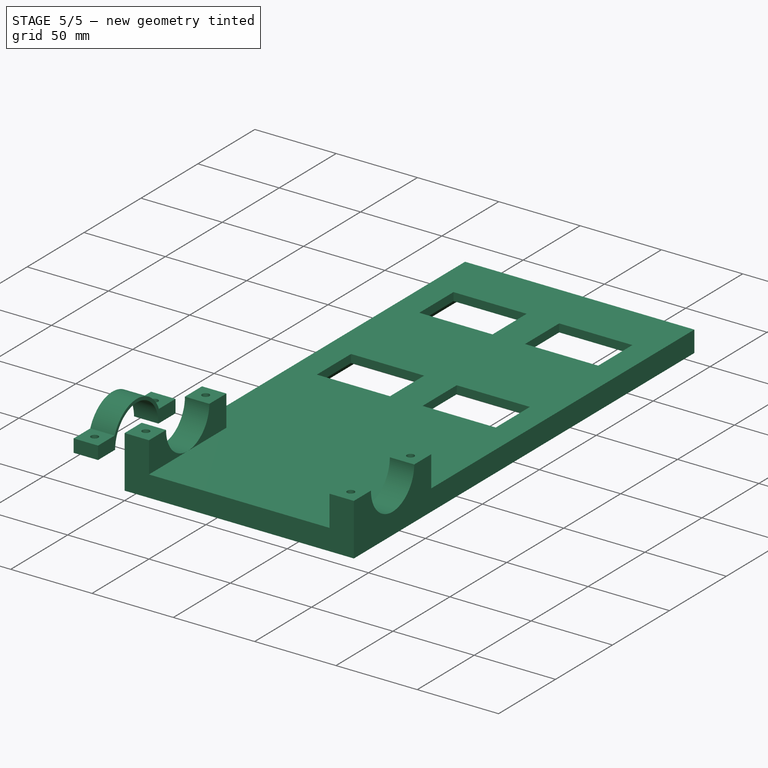
[diagram: stage 5 of 5 — iso view after this stage's code; geometry added in this stage tinted green]
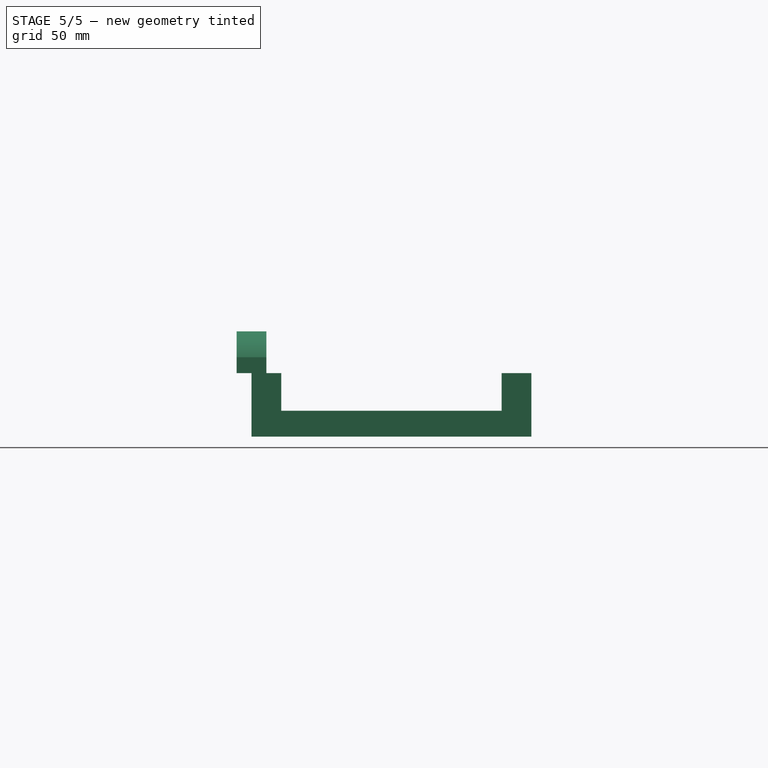
[diagram: stage 5 of 5 — front view after this stage's code; geometry added in this stage tinted green]
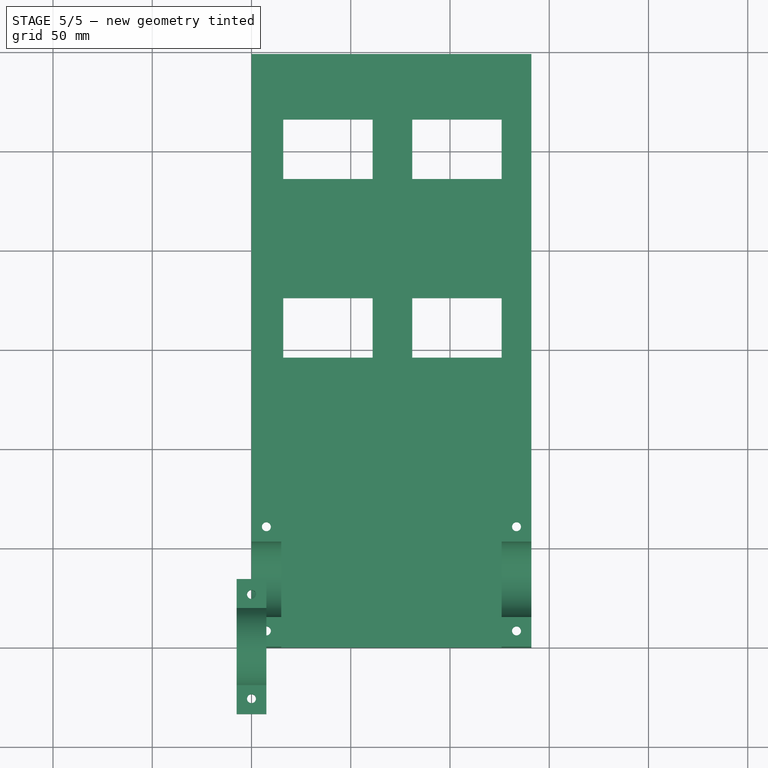
[diagram: stage 5 of 5 — top view after this stage's code; geometry added in this stage tinted green]
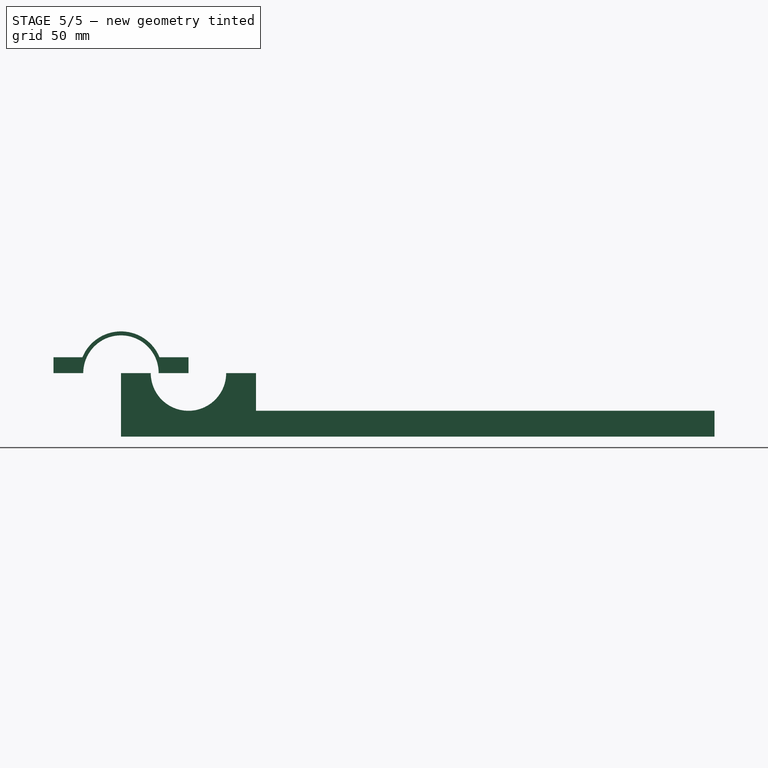
[diagram: stage 5 of 5 — right view after this stage's code; geometry added in this stage tinted green]
FEATURE [PartDesign::Pocket] Pocket011  label="holes_fix"
  BaseFeature = -> Pocket
  Direction = (-1,2e-16,-3e-16)
  Length = 5
  Length2 = 5
  Profile = -> Sketch004
  ReferenceAxis = -> Sketch004 [N_Axis]
  Reversed = true
  Type = 1
FEATURE [PartDesign::Pocket] Pocket012  label="cut_fix001"
  BaseFeature = -> Pocket011
  Direction = (-1,2e-16,-3e-16)
  Length = 5
  Length2 = 5
  Profile = -> Sketch005
  ReferenceAxis = -> Sketch005 [N_Axis]
  Reversed = true
  Type = 1
FEATURE [PartDesign::Pocket] Pocket013  label="holes_screw_poc"
  BaseFeature = -> Pocket012
  Direction = (0,0,-1)
  Length = 5
  Length2 = 5
  Profile = -> Sketch006
  ReferenceAxis = -> Sketch006 [N_Axis]
  Reversed = true
  Type = 1
FEATURE [Sketcher::SketchObject] Sketch007  label="screw_hole_case"
  ExternalGeometry = -> [Pocket013]
  FullyConstrained = true
  MapMode = 5
  Support = -> [XY_Plane001]
  expr: Constraints[0] = Spreadsheet.boxe_screw
  sketch-geometry (4):
    g0: Circle CenterX=133.5 CenterY=8 CenterZ=0 NormalX=0 NormalY=0 NormalZ=1 AngleXU=0 Radius=4
    g1: Circle CenterX=7.5 CenterY=60.5 CenterZ=0 NormalX=0 NormalY=0 NormalZ=1 AngleXU=0 Radius=4
    g2: Circle CenterX=7.5 CenterY=8 CenterZ=0 NormalX=0 NormalY=0 NormalZ=1 AngleXU=0 Radius=4
    g3: Circle CenterX=133.5 CenterY=60.5 CenterZ=0 NormalX=0 NormalY=0 NormalZ=1 AngleXU=0 Radius=4
  constraints (8):
    c: Diameter(g0) = 8
    c: Equal(g0,g1)
    c: Equal(g0,g2)
    c: Equal(g0,g3)
    c: Coincident(g1,g-3)
    c: Coincident(g2,g-4)
    c: Coincident(g0,g-5)
    c: Coincident(g3,g-6)
FEATURE [PartDesign::Pocket] Pocket014
  BaseFeature = -> Pocket013
  Direction = (0,0,-1)
  Length = 29
  Length2 = 5
  Profile = -> Sketch007
  ReferenceAxis = -> Sketch007 [N_Axis]
  Reversed = true
  Type = 0
  expr: Length = <<Spreadsheet>>.hole_height - 3
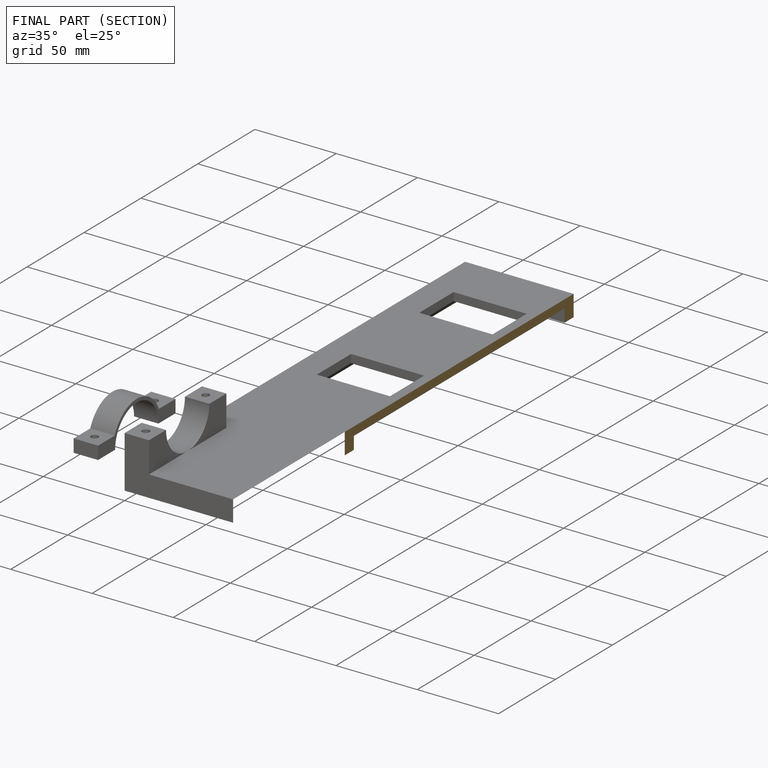
[diagram: finished part — half-section view (interior)]
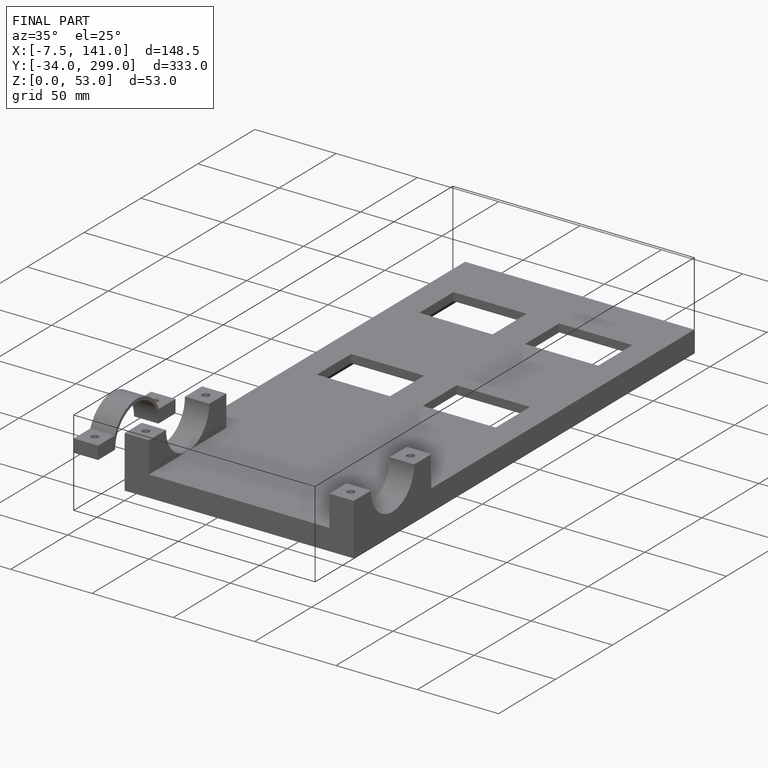
[diagram: finished part — iso view with bounding-box wireframe]
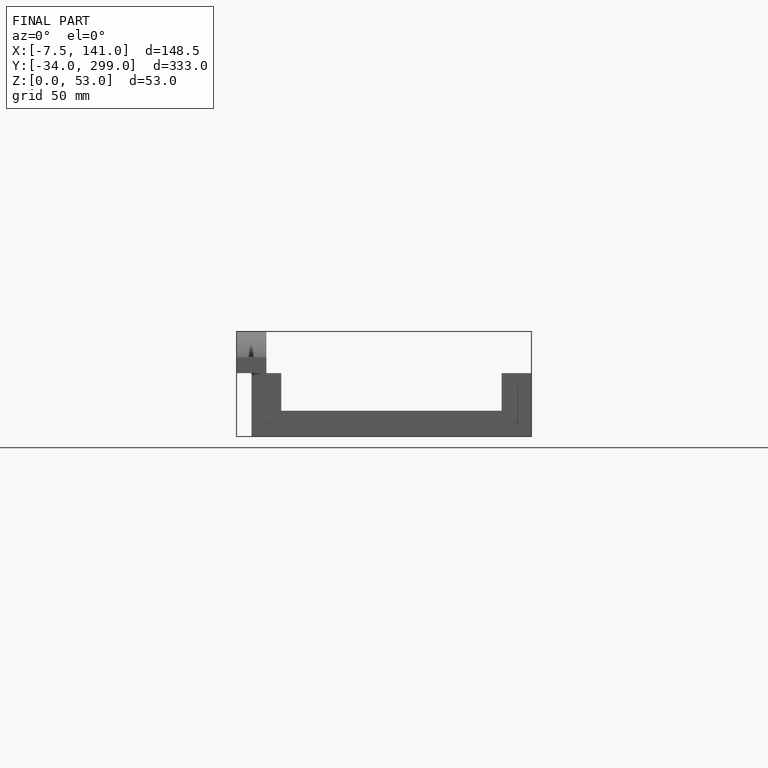
[diagram: finished part — front view with bounding-box wireframe]
